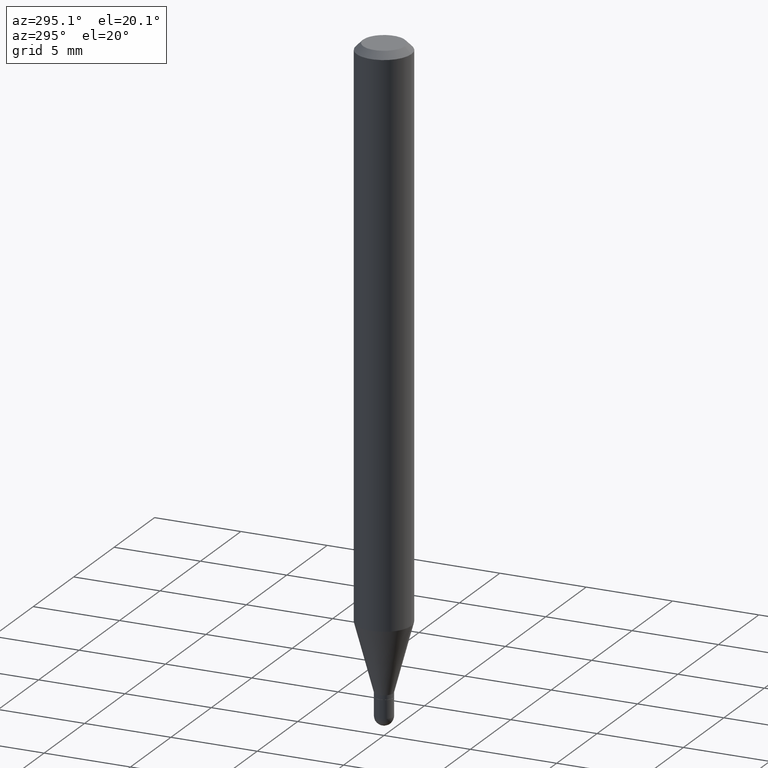
[diagram: clean part render]
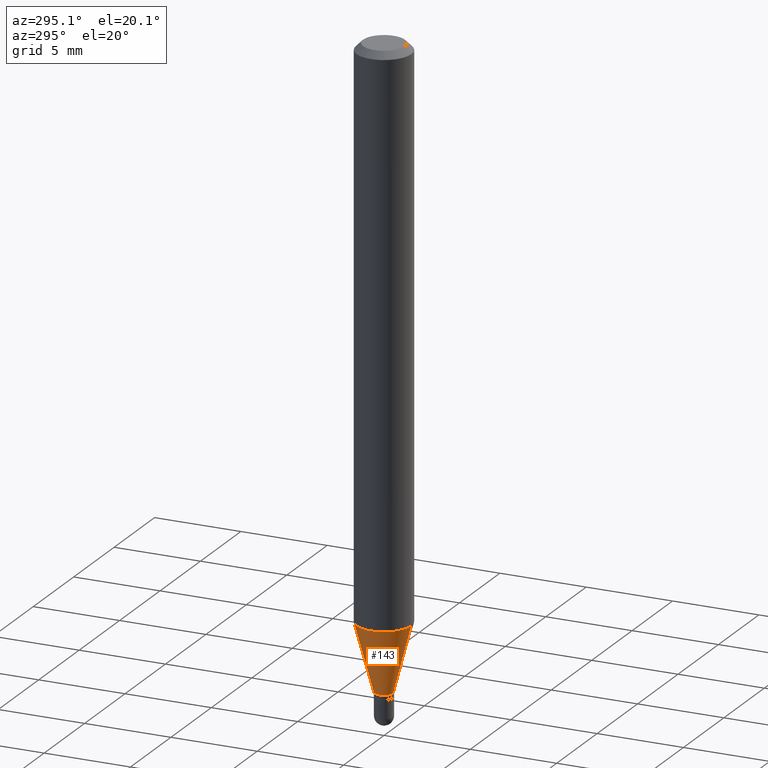
[diagram: same view with one face highlighted and labeled with its STEP entity id]
A machine part, auxiliary view. The second image highlights one B-rep face of the part: STEP entity #143.
In plain terms, the highlighted conical surface has half-angle 15 deg.
Its self-contained STEP definition (entity closure, byte-faithful):
#3 = CARTESIAN_POINT ( 'NONE',  ( -1.466422162313761505E-16, -0.02100000000000490363, -1.427000000000000046 ) ) ;
#20 = CONICAL_SURFACE ( 'NONE', #344, 0.02099999999999992151, 0.2617993877991500740 ) ;
#22 = DIRECTION ( 'NONE',  ( 1.839019923739598738E-15, 0.2588190451025247363, 0.9659258262890673130 ) ) ;
#24 = EDGE_CURVE ( 'NONE', #399, #58, #43, .T. ) ;
#37 = DIRECTION ( 'NONE',  ( -2.445480848549432183E-29, 3.491464093492065747E-15, 1.000000000000000000 ) ) ;
#39 = DIRECTION ( 'NONE',  ( -6.982962677686265922E-15, -1.000000000000000000, 4.370956789862821150E-15 ) ) ;
#43 = LINE ( 'NONE', #3, #462 ) ;
#58 = VERTEX_POINT ( 'NONE', #123 ) ;
#60 = EDGE_CURVE ( 'NONE', #384, #58, #241, .T. ) ;
#79 = CARTESIAN_POINT ( 'NONE',  ( 3.489701170880039634E-29, -4.982319261413178250E-15, -1.427000000000000046 ) ) ;
#80 = DIRECTION ( 'NONE',  ( -1.807323732225328562E-15, -0.2588190451025179639, 0.9659258262890690894 ) ) ;
#121 = EDGE_LOOP ( 'NONE', ( #318, #151, #475, #497 ) ) ;
#123 = CARTESIAN_POINT ( 'NONE',  ( -4.364351673553605587E-16, -0.06250000000000445477, -1.272119891485891552 ) ) ;
#143 = ADVANCED_FACE ( 'NONE', ( #189 ), #20, .T. ) ;
#145 = EDGE_CURVE ( 'NONE', #252, #399, #284, .T. ) ;
#151 = ORIENTED_EDGE ( 'NONE', *, *, #145, .T. ) ;
#153 = DIRECTION ( 'NONE',  ( -2.445480848549432183E-29, 3.491464093492065747E-15, 1.000000000000000000 ) ) ;
#180 = LINE ( 'NONE', #330, #301 ) ;
#189 = FACE_OUTER_BOUND ( 'NONE', #121, .T. ) ;
#241 = CIRCLE ( 'NONE', #300, 0.06250000000000000000 ) ;
#243 = DIRECTION ( 'NONE',  ( -6.982962677686266711E-15, -1.000000000000000000, 0.000000000000000000 ) ) ;
#252 = VERTEX_POINT ( 'NONE', #400 ) ;
#284 = CIRCLE ( 'NONE', #381, 0.02099999999999992151 ) ;
#300 = AXIS2_PLACEMENT_3D ( 'NONE', #343, #153, #39 ) ;
#301 = VECTOR ( 'NONE', #22, 39.37007874015748854 ) ;
#303 = DIRECTION ( 'NONE',  ( -6.982962677686266711E-15, -1.000000000000000000, 0.000000000000000000 ) ) ;
#309 = DIRECTION ( 'NONE',  ( -2.445480848549432183E-29, 3.491464093492065747E-15, 1.000000000000000000 ) ) ;
#318 = ORIENTED_EDGE ( 'NONE', *, *, #450, .F. ) ;
#330 = CARTESIAN_POINT ( 'NONE',  ( 1.492139745096553638E-16, 0.02099999999999493938, -1.427000000000000046 ) ) ;
#343 = CARTESIAN_POINT ( 'NONE',  ( 3.110944831687530350E-29, -4.441560923740014172E-15, -1.272119891485891774 ) ) ;
#344 = AXIS2_PLACEMENT_3D ( 'NONE', #446, #37, #243 ) ;
#381 = AXIS2_PLACEMENT_3D ( 'NONE', #79, #309, #303 ) ;
#384 = VERTEX_POINT ( 'NONE', #417 ) ;
#399 = VERTEX_POINT ( 'NONE', #486 ) ;
#400 = CARTESIAN_POINT ( 'NONE',  ( 2.966515921798746316E-16, 0.02099999999999493938, -1.427000000000000046 ) ) ;
#417 = CARTESIAN_POINT ( 'NONE',  ( 4.440892098500934804E-16, 0.06249999999999554523, -1.272119891485891996 ) ) ;
#446 = CARTESIAN_POINT ( 'NONE',  ( 3.489701170880039634E-29, -4.982319261413178250E-15, -1.427000000000000046 ) ) ;
#450 = EDGE_CURVE ( 'NONE', #252, #384, #180, .T. ) ;
#462 = VECTOR ( 'NONE', #80, 39.37007874015748854 ) ;
#475 = ORIENTED_EDGE ( 'NONE', *, *, #24, .T. ) ;
#486 = CARTESIAN_POINT ( 'NONE',  ( -1.466422162313761505E-16, -0.02100000000000490363, -1.427000000000000046 ) ) ;
#497 = ORIENTED_EDGE ( 'NONE', *, *, #60, .F. ) ;